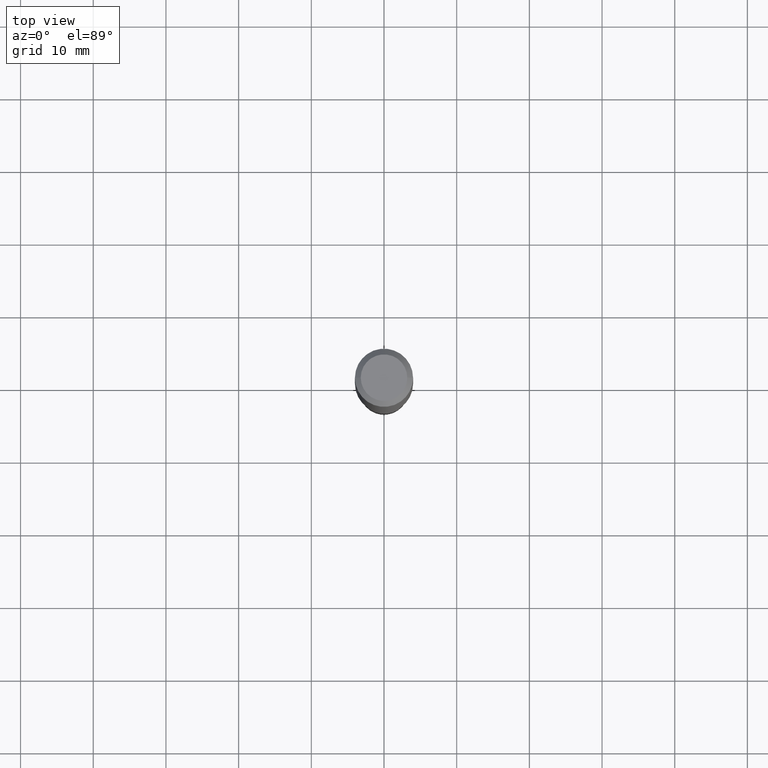
[diagram: clean part render]
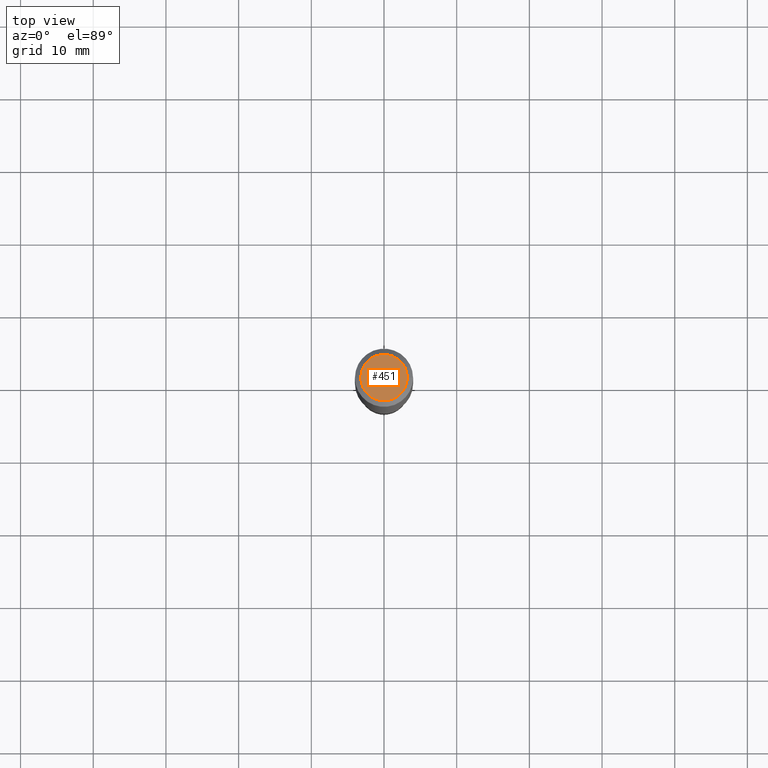
[diagram: same view with one face highlighted and labeled with its STEP entity id]
A machine part, top view. The second image highlights one B-rep face of the part: STEP entity #451.
In plain terms, the highlighted planar face has unit normal (0, -0, -1).
Its self-contained STEP definition (entity closure, byte-faithful):
#9 = EDGE_CURVE ( 'NONE', #55, #178, #395, .T. ) ;
#27 = CARTESIAN_POINT ( 'NONE',  ( -4.719860820353096954E-47, 6.738710358733626979E-33, 1.930043355456227940E-18 ) ) ;
#55 = VERTEX_POINT ( 'NONE', #305 ) ;
#76 = DIRECTION ( 'NONE',  ( -2.445468806185136597E-29, 3.491481338843145583E-15, 1.000000000000000000 ) ) ;
#94 = ORIENTED_EDGE ( 'NONE', *, *, #281, .T. ) ;
#95 = EDGE_LOOP ( 'NONE', ( #94, #253 ) ) ;
#107 = CIRCLE ( 'NONE', #417, 0.1260000000000000009 ) ;
#112 = DIRECTION ( 'NONE',  ( 1.000000000000000000, -6.982962677686265922E-15, 4.876281427513067258E-29 ) ) ;
#150 = PLANE ( 'NONE',  #489 ) ;
#178 = VERTEX_POINT ( 'NONE', #316 ) ;
#179 = FACE_OUTER_BOUND ( 'NONE', #95, .T. ) ;
#236 = CARTESIAN_POINT ( 'NONE',  ( -9.439721640706193907E-47, 1.347742071746725396E-32, 3.860086710912455880E-18 ) ) ;
#253 = ORIENTED_EDGE ( 'NONE', *, *, #9, .T. ) ;
#259 = DIRECTION ( 'NONE',  ( 2.438088387897960049E-29, -3.491481338843145188E-15, -1.000000000000000000 ) ) ;
#267 = CARTESIAN_POINT ( 'NONE',  ( -9.439721640706193907E-47, 1.347742071746725396E-32, 3.860086710912455880E-18 ) ) ;
#281 = EDGE_CURVE ( 'NONE', #178, #55, #107, .T. ) ;
#305 = CARTESIAN_POINT ( 'NONE',  ( 0.1260000000000000009, -1.027466422270894443E-15, 3.860086710919124220E-18 ) ) ;
#316 = CARTESIAN_POINT ( 'NONE',  ( -0.1260000000000000009, 9.348441284752482932E-16, 3.860086710906110326E-18 ) ) ;
#385 = DIRECTION ( 'NONE',  ( -2.445468806185136597E-29, 3.491481338843145583E-15, 1.000000000000000000 ) ) ;
#395 = CIRCLE ( 'NONE', #467, 0.1260000000000000009 ) ;
#417 = AXIS2_PLACEMENT_3D ( 'NONE', #236, #76, #112 ) ;
#424 = DIRECTION ( 'NONE',  ( -1.000000000000000000, 6.982962677686265922E-15, -4.876176775795935793E-29 ) ) ;
#451 = ADVANCED_FACE ( 'NONE', ( #179 ), #150, .F. ) ;
#465 = DIRECTION ( 'NONE',  ( 1.000000000000000000, -6.982962677686265922E-15, 4.876281427513067258E-29 ) ) ;
#467 = AXIS2_PLACEMENT_3D ( 'NONE', #267, #385, #465 ) ;
#489 = AXIS2_PLACEMENT_3D ( 'NONE', #27, #259, #424 ) ;